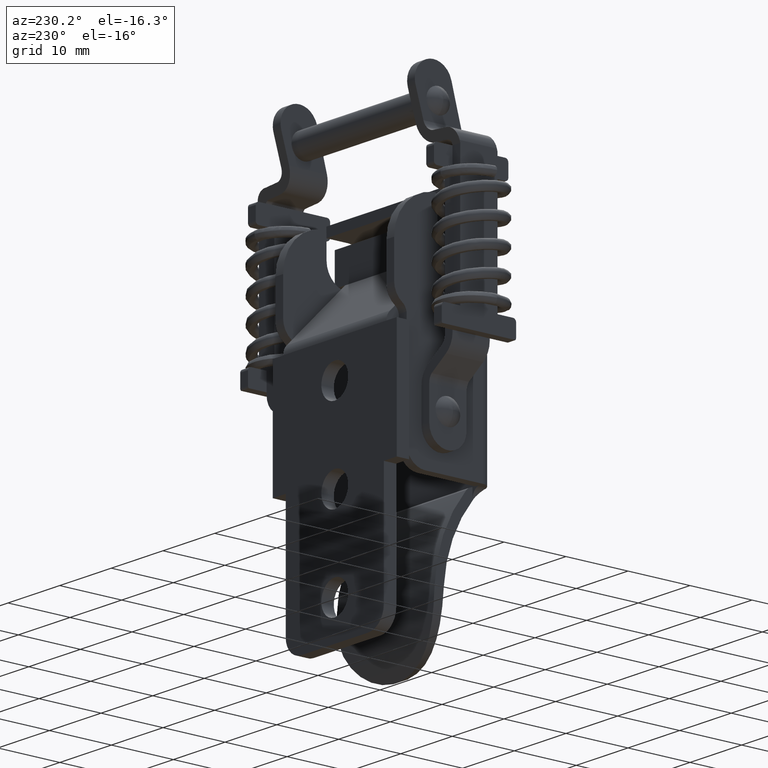
[diagram: clean part render]
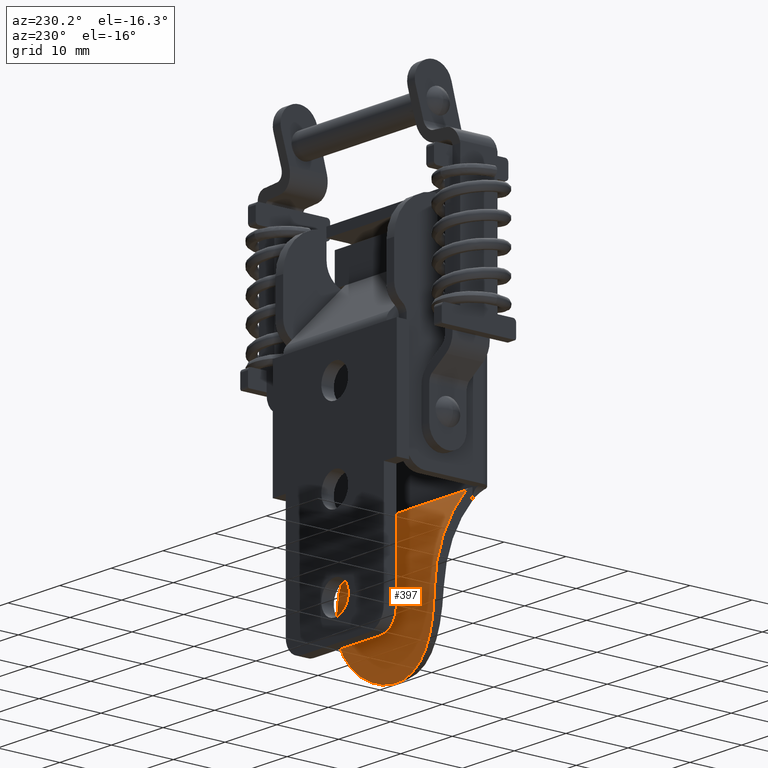
[diagram: same view with one face highlighted and labeled with its STEP entity id]
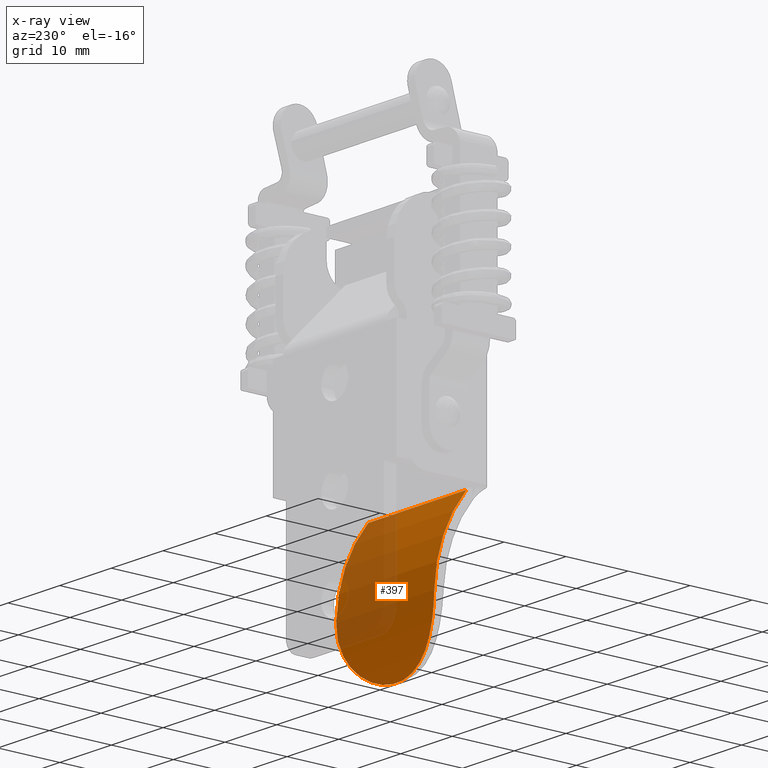
[diagram: x-ray of the same camera — body ghosted, the highlighted face saturated]
A machine part, auxiliary view. The second image highlights one B-rep face of the part: STEP entity #397.
The next image is the same camera in x-ray: the body ghosted, the highlighted face saturated — about 39% of this face is hidden behind the body in this view.
In plain terms, the highlighted cylindrical surface (partial cylindrical patch) has radius 23 mm, axis along (1, 0, 0).
Its self-contained STEP definition (entity closure, byte-faithful):
#397=ADVANCED_FACE('',(#2100),#2099,.T.);
#2099=CYLINDRICAL_SURFACE('',#6917,2.30000000000E+01);
#2100=FACE_OUTER_BOUND('',#6918,.T.);
#6914=CARTESIAN_POINT('',(9.90500000000E+02,-1.53276735495E+01,-5.23125848545E+01));
#6915=DIRECTION('',(1.00000000000E+00,-0.00000000000E+00,-0.00000000000E+00));
#6916=DIRECTION('',(-0.00000000000E+00,-0.00000000000E+00,-1.00000000000E+00));
#6917=AXIS2_PLACEMENT_3D('',#6914,#6915,#6916);
#6918=EDGE_LOOP('',(#8037,#8038,#8039,#8040));
#8037=ORIENTED_EDGE('',*,*,#8568,.T.);
#8038=ORIENTED_EDGE('',*,*,#8703,.F.);
#8039=ORIENTED_EDGE('',*,*,#8709,.T.);
#8040=ORIENTED_EDGE('',*,*,#8701,.T.);
#8568=EDGE_CURVE('',#11002,#10995,#11003,.T.);
#8701=EDGE_CURVE('',#11891,#11002,#11892,.T.);
#8703=EDGE_CURVE('',#11904,#10995,#11905,.T.);
#8709=EDGE_CURVE('',#11904,#11891,#11943,.T.);
#10995=VERTEX_POINT('',#14251);
#11002=VERTEX_POINT('',#14255);
#11003=(BOUNDED_CURVE() B_SPLINE_CURVE(3,(#14256,#14257,#14258,#14259,#14260,#14261,#14262,#14263,#14264,#14265,#14266,#14267,#14268,#14269,#14270,#14271,#14272,#14273,#14274,#14275,#14276,#14277,#14278,#14279,#14280,#14281,#14282,#14283,#14284,#14285,#14286,#14287,#14288,#14289,#14290,#14291,#14292,#14293,#14294,#14295,#14296,#14297,#14298,#14299,#14300,#14301),.UNSPECIFIED.,.F.,.F.) B_SPLINE_CURVE_WITH_KNOTS((4,2,2,2,2,2,2,2,2,2,2,2,2,2,2,2,2,2,2,2,2,2,4),(0.00000000000E+00,1.89590421827E-03,2.84385632740E-03,3.79180843653E-03,5.68771265480E-03,6.63566476393E-03,7.58361687306E-03,9.47952109133E-03,1.13754253096E-02,1.23233774187E-02,1.32713295279E-02,1.51672337461E-02,1.70631379644E-02,1.80110900735E-02,1.89590421827E-02,2.08549464009E-02,2.18028985101E-02,2.27508506192E-02,2.46467548375E-02,2.65426590557E-02,2.74906111649E-02,2.84385632740E-02,3.03344674923E-02),.UNSPECIFIED.) CURVE() GEOMETRIC_REPRESENTATION_ITEM() RATIONAL_B_SPLINE_CURVE((1.00000000000E+00,1.00000000000E+00,1.00000000000E+00,1.00000000000E+00,1.00000000000E+00,1.00000000000E+00,1.00000000000E+00,1.00000000000E+00,1.00000000000E+00,1.00000000000E+00,1.00000000000E+00,1.00000000000E+00,1.00000000000E+00,1.00000000000E+00,1.00000000000E+00,1.00000000000E+00,1.00000000000E+00,1.00000000000E+00,1.00000000000E+00,1.00000000000E+00,1.00000000000E+00,1.00000000000E+00,1.00000000000E+00,1.00000000000E+00,1.00000000000E+00,1.00000000000E+00,1.00000000000E+00,1.00000000000E+00,1.00000000000E+00,1.00000000000E+00,1.00000000000E+00,1.00000000000E+00,1.00000000000E+00,1.00000000000E+00,1.00000000000E+00,1.00000000000E+00,1.00000000000E+00,1.00000000000E+00,1.00000000000E+00,1.00000000000E+00,1.00000000000E+00,1.00000000000E+00,1.00000000000E+00,1.00000000000E+00,1.00000000000E+00,1.00000000000E+00)) REPRESENTATION_ITEM('') );
#11891=VERTEX_POINT('',#14864);
#11892=CIRCLE('',#14868,2.30000000000E+01);
#11904=VERTEX_POINT('',#14873);
#11905=CIRCLE('',#14877,2.30000000000E+01);
#11943=LINE('',#14905,#14906);
#14251=CARTESIAN_POINT('',(-9.50000000000E+00,7.66234984097E+00,-5.16352189950E+01));
#14255=CARTESIAN_POINT('',(9.50000000000E+00,7.66234984097E+00,-5.16352189950E+01));
#14256=CARTESIAN_POINT('',(9.50000000000E+00,7.66234984097E+00,-5.16352189950E+01));
#14257=CARTESIAN_POINT('',(9.50000000000E+00,7.68120760166E+00,-5.22752576880E+01));
#14258=CARTESIAN_POINT('',(9.44780404772E+00,7.67309202000E+00,-5.29065318530E+01));
#14259=CARTESIAN_POINT('',(9.28534388583E+00,7.62369572566E+00,-5.38395576283E+01));
#14260=CARTESIAN_POINT('',(9.21709206686E+00,7.60101932106E+00,-5.41482412581E+01));
#14261=CARTESIAN_POINT('',(9.05038397506E+00,7.54373682271E+00,-5.47606818237E+01));
#14262=CARTESIAN_POINT('',(8.95155118983E+00,7.50899551588E+00,-5.50648132720E+01));
#14263=CARTESIAN_POINT('',(8.61489679128E+00,7.39096784997E+00,-5.59479932239E+01));
#14264=CARTESIAN_POINT('',(8.33556591234E+00,7.29331598952E+00,-5.65053818293E+01));
#14265=CARTESIAN_POINT('',(7.83072003610E+00,7.12796042745E+00,-5.72942192494E+01));
#14266=CARTESIAN_POINT('',(7.64691665228E+00,7.06934800991E+00,-5.75506107191E+01));
#14267=CARTESIAN_POINT('',(7.25457160008E+00,6.94921816797E+00,-5.80400262639E+01));
#14268=CARTESIAN_POINT('',(7.04701946445E+00,6.88798632926E+00,-5.82721725082E+01));
#14269=CARTESIAN_POINT('',(6.39095824940E+00,6.70377451942E+00,-5.89325706086E+01));
#14270=CARTESIAN_POINT('',(5.90911515153E+00,6.58019450202E+00,-5.93252792141E+01));
#14271=CARTESIAN_POINT('',(4.85443026542E+00,6.34724827938E+00,-6.00152031402E+01));
#14272=CARTESIAN_POINT('',(4.29910101367E+00,6.24185607418E+00,-6.03011286483E+01));
#14273=CARTESIAN_POINT('',(3.42578687831E+00,6.10897484556E+00,-6.06483790951E+01));
#14274=CARTESIAN_POINT('',(3.12791091007E+00,6.06887335818E+00,-6.07504041197E+01));
#14275=CARTESIAN_POINT('',(2.51827178682E+00,5.99848602536E+00,-6.09267552332E+01));
#14276=CARTESIAN_POINT('',(2.20748242167E+00,5.96838211197E+00,-6.10006250846E+01));
#14277=CARTESIAN_POINT('',(1.27280158847E+00,5.89595844159E+00,-6.11767579239E+01));
#14278=CARTESIAN_POINT('',(6.40905900678E-01,5.87080927468E+00,-6.12358312343E+01));
#14279=CARTESIAN_POINT('',(-6.40837071924E-01,5.87080747291E+00,-6.12358355147E+01));
#14280=CARTESIAN_POINT('',(-1.27080170903E+00,5.89594689084E+00,-6.11767694561E+01));
#14281=CARTESIAN_POINT('',(-2.20003366210E+00,5.96773421405E+00,-6.10022089256E+01));
#14282=CARTESIAN_POINT('',(-2.50713821510E+00,5.99734754298E+00,-6.09295671190E+01));
#14283=CARTESIAN_POINT('',(-3.11593172178E+00,6.06734877776E+00,-6.07542628605E+01));
#14284=CARTESIAN_POINT('',(-3.41779166021E+00,6.10784100322E+00,-6.06512979029E+01));
#14285=CARTESIAN_POINT('',(-4.29469210613E+00,6.24102269952E+00,-6.03033933168E+01));
#14286=CARTESIAN_POINT('',(-4.84840605587E+00,6.34614911002E+00,-6.00180981887E+01));
#14287=CARTESIAN_POINT('',(-5.63258634556E+00,6.51900590012E+00,-5.95066781352E+01));
#14288=CARTESIAN_POINT('',(-5.88759799868E+00,6.57951898164E+00,-5.93209828160E+01));
#14289=CARTESIAN_POINT('',(-6.37357432072E+00,6.70194109749E+00,-5.89261168223E+01));
#14290=CARTESIAN_POINT('',(-6.60422146085E+00,6.76370526847E+00,-5.87175065221E+01));
#14291=CARTESIAN_POINT('',(-7.26019928780E+00,6.94774625708E+00,-5.80583512111E+01));
#14292=CARTESIAN_POINT('',(-7.64987516372E+00,7.06883185183E+00,-5.75747809281E+01));
#14293=CARTESIAN_POINT('',(-8.33179035217E+00,7.29197707381E+00,-5.65132475865E+01));
#14294=CARTESIAN_POINT('',(-8.61252561687E+00,7.39014006425E+00,-5.59527351731E+01));
#14295=CARTESIAN_POINT('',(-8.94851817082E+00,7.50793044024E+00,-5.50734955481E+01));
#14296=CARTESIAN_POINT('',(-9.04637840771E+00,7.54233883651E+00,-5.47737412191E+01));
#14297=CARTESIAN_POINT('',(-9.21410704223E+00,7.60001438561E+00,-5.41607956481E+01));
#14298=CARTESIAN_POINT('',(-9.28365750967E+00,7.62315595134E+00,-5.38480628496E+01));
#14299=CARTESIAN_POINT('',(-9.44778529487E+00,7.67313954467E+00,-5.29089629231E+01));
#14300=CARTESIAN_POINT('',(-9.50000000000E+00,7.68121510698E+00,-5.22755124211E+01));
#14301=CARTESIAN_POINT('',(-9.50000000000E+00,7.66234984097E+00,-5.16352189950E+01));
#14864=CARTESIAN_POINT('',(9.50000000000E+00,2.49843928305E+00,-3.77788413147E+01));
#14865=CARTESIAN_POINT('',(9.50000000000E+00,-1.53276735495E+01,-5.23125848545E+01));
#14866=DIRECTION('',(-1.00000000000E+00,0.00000000000E+00,0.00000000000E+00));
#14867=DIRECTION('',(-0.00000000000E+00,-0.00000000000E+00,-1.00000000000E+00));
#14868=AXIS2_PLACEMENT_3D('',#14865,#14866,#14867);
#14873=CARTESIAN_POINT('',(-9.50000000000E+00,2.49843928305E+00,-3.77788413147E+01));
#14874=CARTESIAN_POINT('',(-9.50000000000E+00,-1.53276735495E+01,-5.23125848545E+01));
#14875=DIRECTION('',(-1.00000000000E+00,0.00000000000E+00,0.00000000000E+00));
#14876=DIRECTION('',(-0.00000000000E+00,-0.00000000000E+00,-1.00000000000E+00));
#14877=AXIS2_PLACEMENT_3D('',#14874,#14875,#14876);
#14905=CARTESIAN_POINT('',(-9.50000000000E+00,2.49843928305E+00,-3.77788413147E+01));
#14906=VECTOR('',#14907,1.90000000000E+01);
#14907=DIRECTION('',(1.00000000000E+00,0.00000000000E+00,0.00000000000E+00));